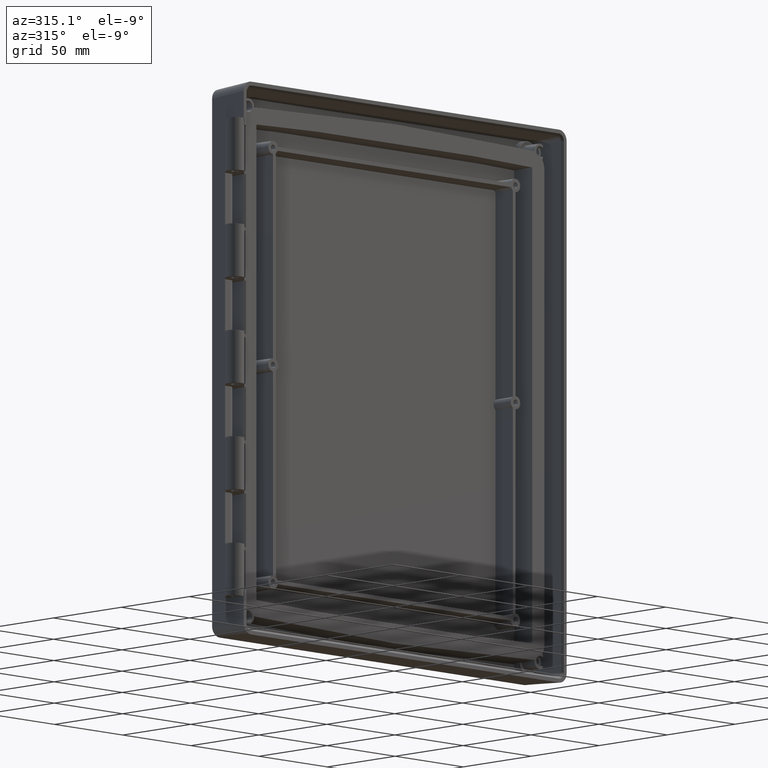
[diagram: clean part render]
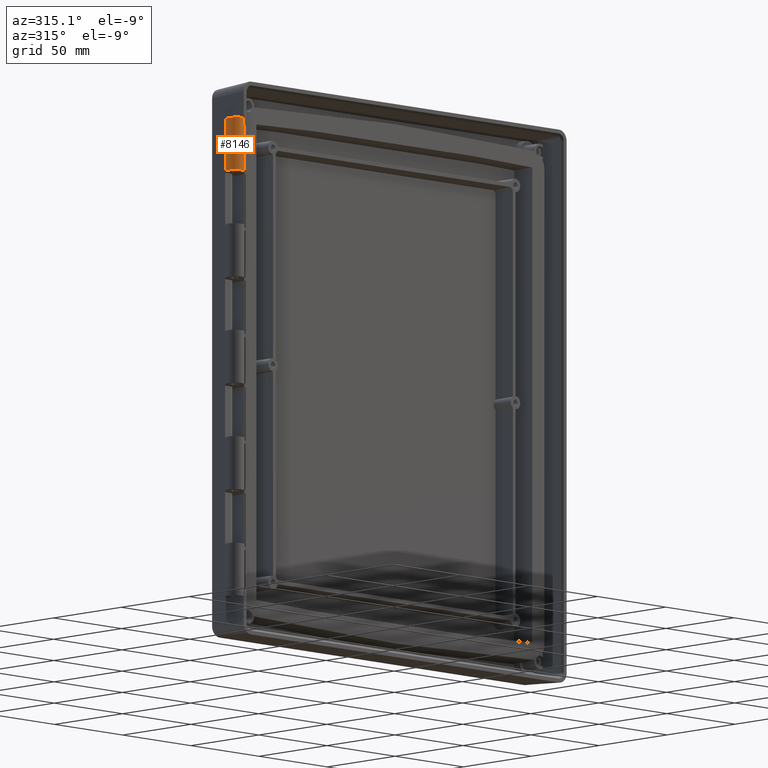
[diagram: same view with one face highlighted and labeled with its STEP entity id]
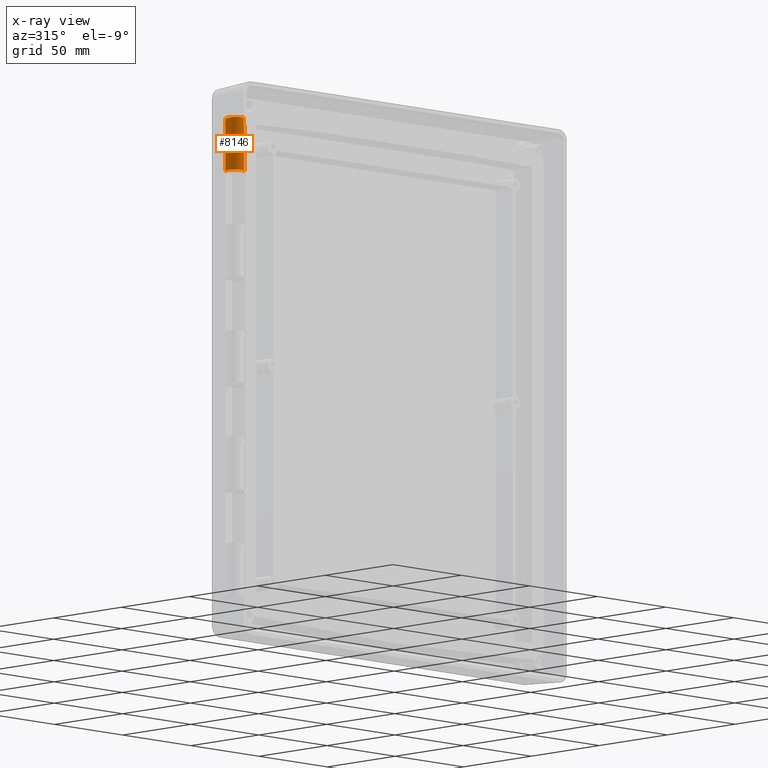
[diagram: x-ray of the same camera — body ghosted, the highlighted face saturated]
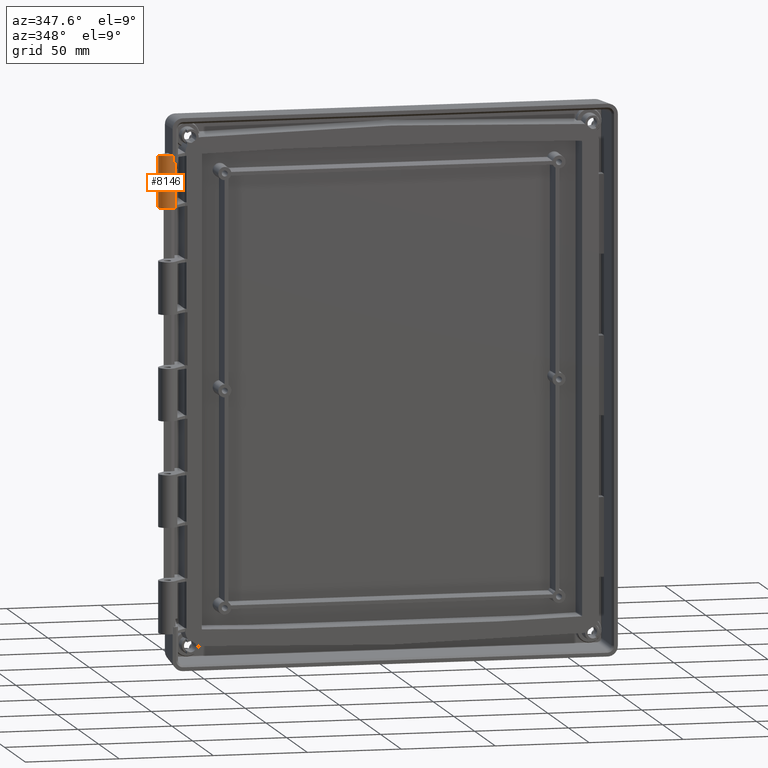
[diagram: same view with one face highlighted and labeled with its STEP entity id]
A machine part, auxiliary view. The second image highlights one B-rep face of the part: STEP entity #8146.
The next image is the same camera in x-ray: the body ghosted, the highlighted face saturated — about 0% of this face is hidden behind the body in this view.
A second angle (auxiliary view) of the same face is appended — the face is thin or edge-on in the first view.
In plain terms, the highlighted cylindrical surface (edge-blend (fillet) strip) has radius 4.9 mm, axis along (0, 0, -1).
Its self-contained STEP definition (entity closure, byte-faithful):
#873=CARTESIAN_POINT('',(-1.184040579168E2,-7.709884340567E0,1.258451551631E2));
#874=CARTESIAN_POINT('',(-1.187955077284E2,-7.850929849477E0,1.258525470450E2));
#875=CARTESIAN_POINT('',(-1.193087752030E2,-7.953881340771E0,1.258579425041E2));
#876=CARTESIAN_POINT('',(-1.201359322171E2,-8.027320635099E0,1.258617912944E2));
#877=CARTESIAN_POINT('',(-1.209136158812E2,-7.948862750263E0,1.258576794909E2));
#878=CARTESIAN_POINT('',(-1.216827782683E2,-7.745715624935E0,1.258470330012E2));
#879=CARTESIAN_POINT('',(-1.225465697715E2,-7.367382989386E0,1.258272054279E2));
#880=CARTESIAN_POINT('',(-1.234087707498E2,-6.749937967678E0,1.257948465055E2));
#881=CARTESIAN_POINT('',(-1.241859736215E2,-5.837965822373E0,1.257470520706E2));
#882=CARTESIAN_POINT('',(-1.247255226159E2,-4.768100030984E0,1.256909827803E2));
#883=CARTESIAN_POINT('',(-1.249606209458E2,-3.734017482505E0,1.256367888104E2));
#884=CARTESIAN_POINT('',(-1.249746773096E2,-2.791133656298E0,1.255873743629E2));
#885=CARTESIAN_POINT('',(-1.248639186389E2,-2.003380272098E0,1.255460899574E2));
#886=CARTESIAN_POINT('',(-1.246349054390E2,-1.256088197796E0,1.255069260393E2));
#887=CARTESIAN_POINT('',(-1.242467789355E2,-5.221114808791E-1,
1.254684599496E2));
#888=CARTESIAN_POINT('',(-1.239530143235E2,-8.888304470469E-2,
1.254457554093E2));
#889=CARTESIAN_POINT('',(-1.236714999260E2,2.171787012678E-1,1.254297153929E2));
#1319=CARTESIAN_POINT('',(-1.165947744643E2,-6.559340685211E0,
9.811449371755E1));
#1320=CARTESIAN_POINT('',(-1.167068865206E2,-6.671807822755E0,
9.811645683873E1));
#1321=CARTESIAN_POINT('',(-1.167494563025E2,-6.707040335770E0,
9.811707182454E1));
#1322=CARTESIAN_POINT('',(-1.168866062704E2,-6.831819868207E0,
9.811924985938E1));
#1323=CARTESIAN_POINT('',(-1.169837460578E2,-6.910205165138E0,
9.812061807982E1));
#1324=CARTESIAN_POINT('',(-1.170928492920E2,-6.996472326971E0,
9.812212387874E1));
#1325=CARTESIAN_POINT('',(-1.172141754020E2,-7.086280703673E0,
9.812369148978E1));
#1326=CARTESIAN_POINT('',(-1.173454816988E2,-7.177288253182E0,
9.812528003247E1));
#1327=CARTESIAN_POINT('',(-1.174826254735E2,-7.265168741396E0,
9.812681399210E1));
#1328=CARTESIAN_POINT('',(-1.176067517803E2,-7.339455077606E0,
9.812811066492E1));
#1329=CARTESIAN_POINT('',(-1.177594122493E2,-7.425093373638E0,
9.812960548693E1));
#1330=CARTESIAN_POINT('',(-1.179320666405E2,-7.513165050359E0,
9.813114278377E1));
#1331=CARTESIAN_POINT('',(-1.181201576890E2,-7.598910952209E0,
9.813263948405E1));
#1332=CARTESIAN_POINT('',(-1.183522028099E2,-7.693665550282E0,
9.813429343172E1));
#1333=CARTESIAN_POINT('',(-1.186154938983E2,-7.784157760548E0,
9.813587297912E1));
#1334=CARTESIAN_POINT('',(-1.189029810913E2,-7.863025405373E0,
9.813724961898E1));
#1335=CARTESIAN_POINT('',(-1.191693048046E2,-7.919792011620E0,
9.813824048378E1));
#1336=CARTESIAN_POINT('',(-1.194190904378E2,-7.959287887525E0,
9.813892988686E1));
#1337=CARTESIAN_POINT('',(-1.197340905804E2,-7.993102174324E0,
9.813952011743E1));
#1338=CARTESIAN_POINT('',(-1.200995774852E2,-8.005854673918E0,
9.813974271314E1));
#1339=CARTESIAN_POINT('',(-1.205040370061E2,-7.985521154220E0,
9.813938779023E1));
#1340=CARTESIAN_POINT('',(-1.208808556429E2,-7.936322237320E0,
9.813852901994E1));
#1341=CARTESIAN_POINT('',(-1.212343814997E2,-7.862798651707E0,
9.813724566098E1));
#1342=CARTESIAN_POINT('',(-1.215676111250E2,-7.768079695367E0,
9.813559233545E1));
#1343=CARTESIAN_POINT('',(-1.219876991522E2,-7.616496730734E0,
9.813294644496E1));
#1344=CARTESIAN_POINT('',(-1.224715124515E2,-7.383891812128E0,
9.812888631100E1));
#1345=CARTESIAN_POINT('',(-1.229941467488E2,-7.044257386145E0,
9.812295797005E1));
#1346=CARTESIAN_POINT('',(-1.234628015939E2,-6.648252175288E0,
9.811604567338E1));
#1347=CARTESIAN_POINT('',(-1.238787373805E2,-6.197192409625E0,
9.810817239588E1));
#1348=CARTESIAN_POINT('',(-1.242406937150E2,-5.689761859140E0,
9.809931516268E1));
#1349=CARTESIAN_POINT('',(-1.244940392756E2,-5.216479297453E0,
9.809105398483E1));
#1350=CARTESIAN_POINT('',(-1.246636783366E2,-4.803352277963E0,
9.808384282588E1));
#1351=CARTESIAN_POINT('',(-1.247727440274E2,-4.474538746284E0,
9.807810336434E1));
#1352=CARTESIAN_POINT('',(-1.248615134867E2,-4.124529843984E0,
9.807199393623E1));
#1353=CARTESIAN_POINT('',(-1.249269901663E2,-3.750196273115E0,
9.806545991944E1));
#1354=CARTESIAN_POINT('',(-1.249648259620E2,-3.346997305263E0,
9.805842205528E1));
#1355=CARTESIAN_POINT('',(-1.249679184879E2,-2.981301066322E0,
9.805203880368E1));
#1356=CARTESIAN_POINT('',(-1.249477818901E2,-2.665131788340E0,
9.804652004841E1));
#1357=CARTESIAN_POINT('',(-1.249191439158E2,-2.413869669257E0,
9.804213425181E1));
#1358=CARTESIAN_POINT('',(-1.248739678616E2,-2.145336820131E0,
9.803744699349E1));
#1359=CARTESIAN_POINT('',(-1.248076283283E2,-1.854702932902E0,
9.803237396012E1));
#1360=CARTESIAN_POINT('',(-1.247286269567E2,-1.587738854619E0,
9.802771408480E1));
#1361=CARTESIAN_POINT('',(-1.246440136102E2,-1.351806762962E0,
9.802359587482E1));
#1362=CARTESIAN_POINT('',(-1.245664963931E2,-1.160177741540E0,
9.802025097781E1));
#1363=CARTESIAN_POINT('',(-1.244859868623E2,-9.838701328961E-1,
9.801717351705E1));
#1364=CARTESIAN_POINT('',(-1.244070422826E2,-8.276430921499E-1,
9.801444656391E1));
#1365=CARTESIAN_POINT('',(-1.243382028942E2,-7.004151991705E-1,
9.801222579278E1));
#1366=CARTESIAN_POINT('',(-1.242563460365E2,-5.595931524804E-1,
9.800976773481E1));
#1367=CARTESIAN_POINT('',(-1.241711121827E2,-4.244676502875E-1,
9.800740911040E1));
#1368=CARTESIAN_POINT('',(-1.240866440089E2,-2.993648925673E-1,
9.800522543364E1));
#1369=CARTESIAN_POINT('',(-1.240051842913E2,-1.866270120944E-1,
9.800325758661E1));
#1370=CARTESIAN_POINT('',(-1.239310805847E2,-8.618259186718E-2,
9.800150432274E1));
#1371=CARTESIAN_POINT('',(-1.238123599313E2,5.624376924656E-2,
9.799901826136E1));
#1372=CARTESIAN_POINT('',(-1.237790040680E2,1.003004680609E-1,
9.799824924882E1));
#1373=CARTESIAN_POINT('',(-1.236714999260E2,2.171787012677E-1,
9.799620913167E1));
#1375=DIRECTION('',(0.E0,0.E0,-1.E0));
#1376=VECTOR('',#1375,2.743350626120E1);
#1377=CARTESIAN_POINT('',(-1.236714999260E2,2.171787012679E-1,
1.254297153929E2));
#1378=LINE('',#1377,#1376);
#1379=DIRECTION('',(0.E0,0.E0,1.E0));
#1380=VECTOR('',#1379,1.993198979942E1);
#1381=CARTESIAN_POINT('',(-1.165947744643E2,-6.559340685211E0,
9.811449371755E1));
#1382=LINE('',#1381,#1380);
#2447=DIRECTION('',(0.E0,0.E0,1.E0));
#2448=VECTOR('',#2447,3.978014727640E0);
#2449=CARTESIAN_POINT('',(-1.165947744643E2,-6.559340685211E0,
1.180464835170E2));
#2450=LINE('',#2449,#2448);
#2502=CARTESIAN_POINT('',(-1.179312929975E2,-7.511007706843E0,
1.220743729998E2));
#2503=CARTESIAN_POINT('',(-1.174318102030E2,-7.269388159424E0,
1.220617102559E2));
#2504=CARTESIAN_POINT('',(-1.169863271219E2,-6.952133468363E0,
1.220450836421E2));
#2505=CARTESIAN_POINT('',(-1.165947744643E2,-6.559340685211E0,
1.220244982446E2));
#2527=DIRECTION('',(0.E0,0.E0,1.E0));
#2528=VECTOR('',#2527,3.760359480574E0);
#2529=CARTESIAN_POINT('',(-1.179312929975E2,-7.511007706843E0,
1.220743729998E2));
#2530=LINE('',#2529,#2528);
#2535=CARTESIAN_POINT('',(-1.184040579168E2,-7.709884340567E0,
1.258451551631E2));
#2536=CARTESIAN_POINT('',(-1.182429871223E2,-7.651848006110E0,
1.258421136077E2));
#2537=CARTESIAN_POINT('',(-1.180853991730E2,-7.585554948106E0,
1.258386393358E2));
#2538=CARTESIAN_POINT('',(-1.179312929975E2,-7.511007706843E0,
1.258347324804E2));
#6179=CARTESIAN_POINT('',(-1.236714999260E2,2.171787012679E-1,
1.254297153929E2));
#6181=VERTEX_POINT('',#6179);
#6967=CARTESIAN_POINT('',(-1.179312929975E2,-7.511007706843E0,
1.220743729998E2));
#6968=CARTESIAN_POINT('',(-1.179312929975E2,-7.511007706843E0,
1.258347324804E2));
#6969=VERTEX_POINT('',#6967);
#6970=VERTEX_POINT('',#6968);
#6975=VERTEX_POINT('',#2505);
#6985=VERTEX_POINT('',#2535);
#6989=CARTESIAN_POINT('',(-1.165947744643E2,-6.559340685211E0,
1.180464835170E2));
#6990=VERTEX_POINT('',#6989);
#7013=VERTEX_POINT('',#1319);
#7014=VERTEX_POINT('',#1373);
#8124=CARTESIAN_POINT('',(-1.200650715732E2,-3.1E0,1.4E1));
#8125=DIRECTION('',(0.E0,0.E0,-1.E0));
#8126=DIRECTION('',(-1.E0,0.E0,0.E0));
#8127=AXIS2_PLACEMENT_3D('',#8124,#8125,#8126);
#8128=CYLINDRICAL_SURFACE('',#8127,4.9E0);
#8130=ORIENTED_EDGE('',*,*,#8129,.T.);
#8132=ORIENTED_EDGE('',*,*,#8131,.F.);
#8133=ORIENTED_EDGE('',*,*,#8048,.F.);
#8135=ORIENTED_EDGE('',*,*,#8134,.T.);
#8137=ORIENTED_EDGE('',*,*,#8136,.F.);
#8139=ORIENTED_EDGE('',*,*,#8138,.T.);
#8141=ORIENTED_EDGE('',*,*,#8140,.F.);
#8143=ORIENTED_EDGE('',*,*,#8142,.F.);
#8144=EDGE_LOOP('',(#8130,#8132,#8133,#8135,#8137,#8139,#8141,#8143));
#8145=FACE_OUTER_BOUND('',#8144,.F.);
#8146=ADVANCED_FACE('',(#8145),#8128,.T.);
#890=B_SPLINE_CURVE_WITH_KNOTS('',3,(#873,#874,#875,#876,#877,#878,#879,#880,
#881,#882,#883,#884,#885,#886,#887,#888,#889),.UNSPECIFIED.,.F.,.F.,(4,1,1,1,1,
1,1,1,1,1,1,1,1,1,4),(0.E0,3.125E-2,6.25E-2,1.25E-1,1.875E-1,2.5E-1,3.75E-1,
5.E-1,6.25E-1,7.5E-1,8.125E-1,8.75E-1,9.375E-1,9.6875E-1,1.E0),.UNSPECIFIED.);
#1374=B_SPLINE_CURVE_WITH_KNOTS('',3,(#1319,#1320,#1321,#1322,#1323,#1324,#1325,
#1326,#1327,#1328,#1329,#1330,#1331,#1332,#1333,#1334,#1335,#1336,#1337,#1338,
#1339,#1340,#1341,#1342,#1343,#1344,#1345,#1346,#1347,#1348,#1349,#1350,#1351,
#1352,#1353,#1354,#1355,#1356,#1357,#1358,#1359,#1360,#1361,#1362,#1363,#1364,
#1365,#1366,#1367,#1368,#1369,#1370,#1371,#1372,#1373),.UNSPECIFIED.,.F.,.F.,(4,
1,1,1,1,1,1,1,1,1,1,1,1,1,1,1,1,1,1,1,1,1,1,1,1,1,1,1,1,1,1,1,1,1,1,1,1,1,1,1,1,
1,1,1,1,1,1,1,1,1,1,1,4),(0.E0,9.765625E-4,1.953125E-3,3.90625E-3,5.859375E-3,
7.8125E-3,1.171875E-2,1.5625E-2,1.953125E-2,2.34375E-2,3.125E-2,3.90625E-2,
4.6875E-2,6.25E-2,7.8125E-2,9.375E-2,1.09375E-1,1.25E-1,1.5625E-1,1.875E-1,
2.1875E-1,2.5E-1,2.8125E-1,3.125E-1,3.75E-1,4.375E-1,5.E-1,5.625E-1,6.25E-1,
6.875E-1,7.1875E-1,7.5E-1,7.8125E-1,8.125E-1,8.4375E-1,8.75E-1,8.90625E-1,
9.0625E-1,9.21875E-1,9.375E-1,9.53125E-1,9.609375E-1,9.6875E-1,9.765625E-1,
9.8046875E-1,9.84375E-1,9.8828125E-1,9.921875E-1,9.94140625E-1,9.9609375E-1,
9.98046875E-1,9.990234375E-1,1.E0),.UNSPECIFIED.);
#2506=B_SPLINE_CURVE_WITH_KNOTS('',3,(#2502,#2503,#2504,#2505),.UNSPECIFIED.,
.F.,.F.,(4,4),(0.E0,1.E0),.UNSPECIFIED.);
#2539=B_SPLINE_CURVE_WITH_KNOTS('',3,(#2535,#2536,#2537,#2538),.UNSPECIFIED.,
.F.,.F.,(4,4),(0.E0,1.E0),.UNSPECIFIED.);
#8048=EDGE_CURVE('',#6985,#6181,#890,.T.);
#8129=EDGE_CURVE('',#7013,#7014,#1374,.T.);
#8131=EDGE_CURVE('',#6181,#7014,#1378,.T.);
#8134=EDGE_CURVE('',#6985,#6970,#2539,.T.);
#8136=EDGE_CURVE('',#6969,#6970,#2530,.T.);
#8138=EDGE_CURVE('',#6969,#6975,#2506,.T.);
#8140=EDGE_CURVE('',#6990,#6975,#2450,.T.);
#8142=EDGE_CURVE('',#7013,#6990,#1382,.T.);